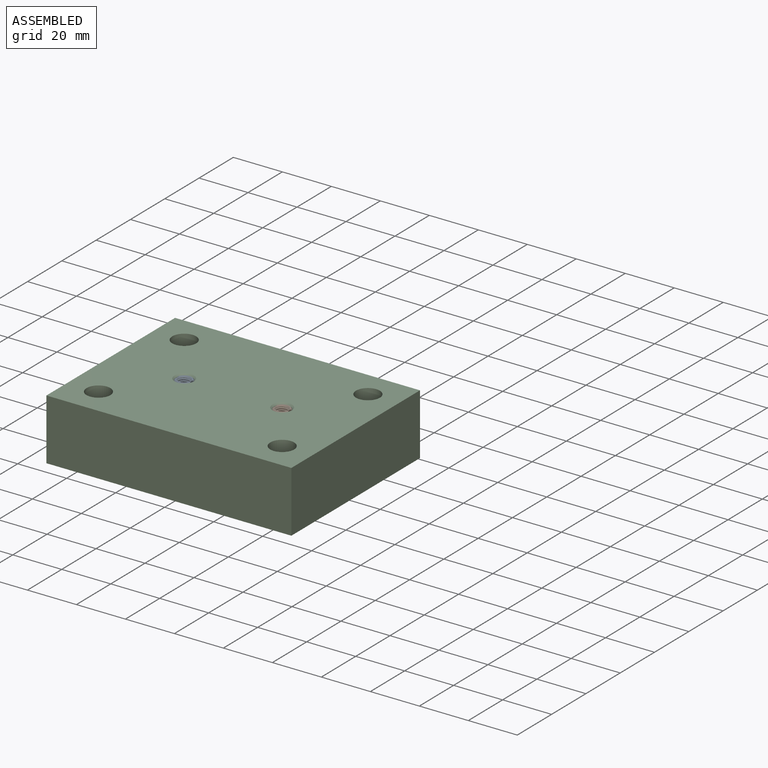
[diagram: assembled view]
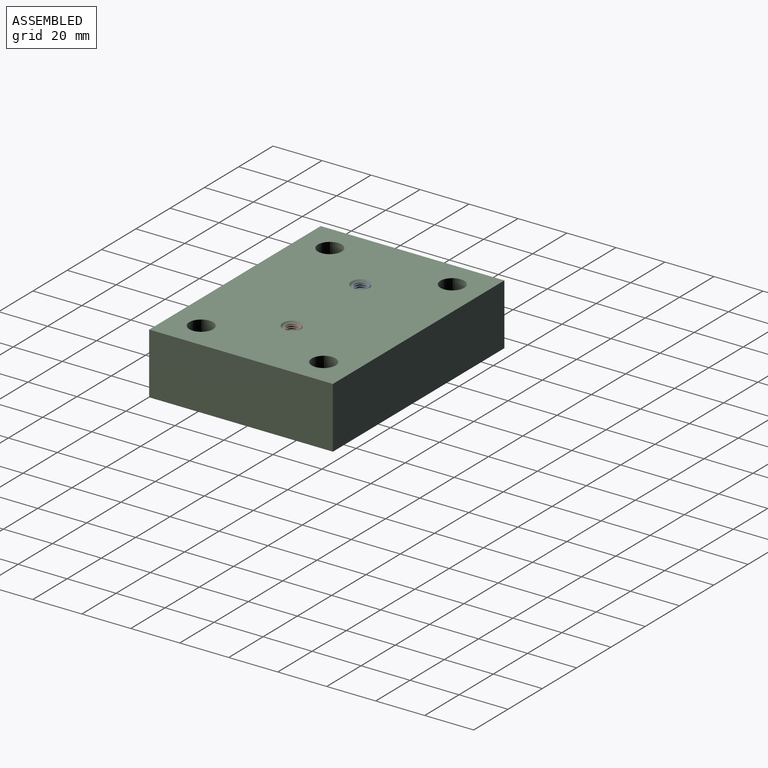
[diagram: assembled view, second angle]
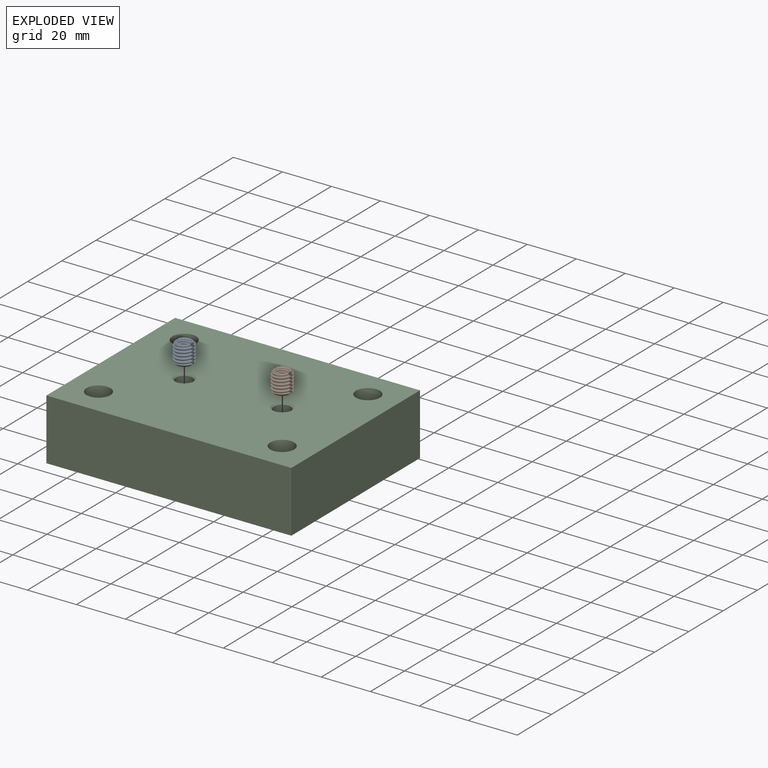
[diagram: exploded view]
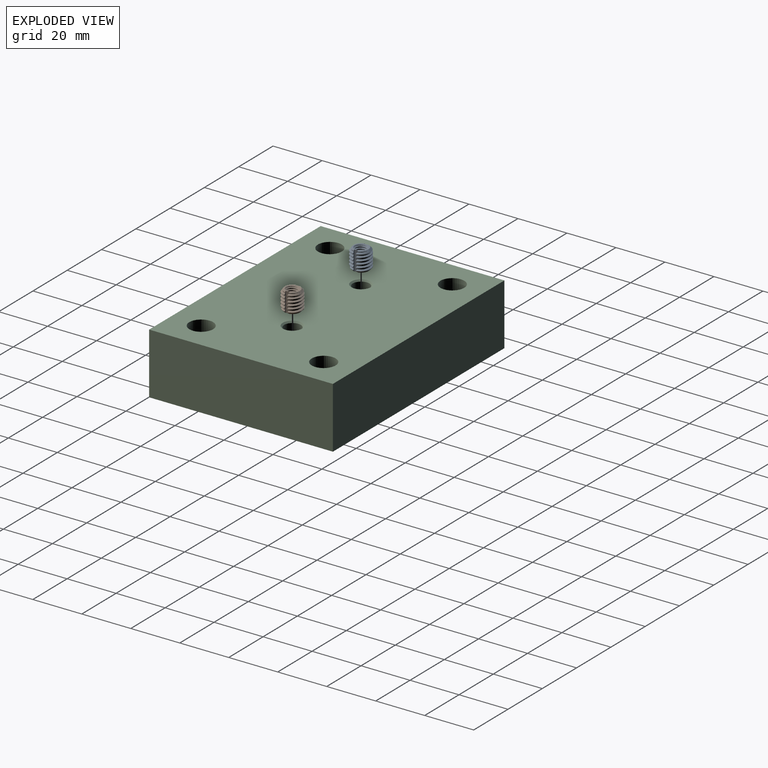
[diagram: exploded view, second angle]
ASSEMBLY  parts=3 mates=2
PART A: 73 faces, bbox 8x8.6x8.1 mm
  f0: cone r=2.59mm half-angle=45deg, axis (0,-1,0), area 7mm2, adj f3,f25,f70,f71,f72
  f1: cone r=2.59mm half-angle=45deg, axis (0,1,0), area 6.2mm2, adj f2,f3,f11,f70,f71,f72
  f2: cone r=2.59mm half-angle=45deg, axis (0,1,0), area 0.8mm2, adj f1,f71,f72
  f3: cylinder r=2.5mm len=7.83mm, axis (0,1,0), area 15.4mm2, adj f0,f1,f70,f71
  f4: cylinder r=4mm len=6.8mm, axis (0,1,0), area 1.1mm2, adj f18,f20,f47,f50
  f5: cone r=4mm half-angle=45deg, axis (0,1,0), area 9.1mm2, adj f17,f20,f23,f25,f27,f31,f32,f33
  f6: cylinder r=4mm len=7.94mm, axis (0,1,0), area 1.8mm2, adj f20,f23,f35,f39
  f7: cylinder r=4mm len=7.94mm, axis (0,1,0), area 1.8mm2, adj f20,f23,f38,f42
  f8: cylinder r=4mm len=7.94mm, axis (0,1,0), area 1.8mm2, adj f20,f23,f41,f45
  f9: cylinder r=4mm len=7.94mm, axis (0,1,0), area 1.8mm2, adj f20,f23,f44,f48
  f10: cone r=3.06mm half-angle=45deg, axis (0,-1,0), area 8.4mm2, adj f11,f21,f22,f28,f30,f68
  f11: plane 6.13x5.94mm, normal (0,1,0), area 7.8mm2, adj f1,f10,f19,f26,f27,f28,f29,f30
  f12: cylinder r=4mm len=7.94mm, axis (0,1,0), area 1.8mm2, adj f21,f22,f62,f66
  f13: cylinder r=4mm len=7.94mm, axis (0,1,0), area 1.8mm2, adj f21,f22,f59,f63
  f14: cylinder r=4mm len=7.94mm, axis (0,1,0), area 1.8mm2, adj f21,f22,f56,f60
  f15: cylinder r=4mm len=7.94mm, axis (0,1,0), area 1.8mm2, adj f21,f22,f53,f57
  f16: cone r=4mm half-angle=45deg, axis (0,1,0), area 5.9mm2, adj f21,f22,f25,f28,f30,f54
  f17: cylinder r=4mm len=2.74mm, axis (0,1,0), area 0.3mm2, adj f5,f23,f33,f36
  f18: cone r=3.06mm half-angle=45deg, axis (0,-1,0), area 2.3mm2, adj f4,f23,f47,f50
  f19: cone r=3.06mm half-angle=45deg, axis (0,-1,0), area 3.6mm2, adj f11,f20,f23,f27,f31,f49,f51
  f20: plane 7.86x0.95mm, normal (0.26,0,-0.97), area 3.7mm2, adj f4,f5,f6,f7,f8,f9,f19,f27
  f21: plane 7.86x0.95mm, normal (0.26,0,0.97), area 3.7mm2, adj f10,f12,f13,f14,f15,f16,f24,f28
  f22: plane 7.89x0.97mm, normal (-0.26,0,0.97), area 3.8mm2, adj f10,f12,f13,f14,f15,f16,f24,f30
  f23: plane 7.86x0.94mm, normal (-0.26,0,-0.97), area 3.8mm2, adj f5,f6,f7,f8,f9,f17,f18,f19
  f24: cylinder r=4mm len=7.94mm, axis (0,1,0), area 1.8mm2, adj f21,f22,f65,f67
  f25: plane 6.13x5.94mm, normal (0,-1,0), area 7.8mm2, adj f0,f5,f16,f26,f27,f28,f29,f30
  f26: plane 8x1.5mm, normal (-1,0,0), area 12mm2, adj f11,f25,f27,f28
  f27: plane 8x0.25mm, normal (0,0,-1), area 2mm2, adj f5,f11,f19,f20,f25,f26
  f28: plane 8x0.25mm, normal (0,0,1), area 2mm2, adj f10,f11,f16,f21,f25,f26
  f29: plane 8x1.5mm, normal (1,0,0), area 12mm2, adj f11,f25,f30,f31
  f30: plane 8x0.25mm, normal (0,0,1), area 2mm2, adj f10,f11,f16,f22,f25,f29
  f31: plane 8x0.25mm, normal (0,0,-1), area 2mm2, adj f5,f11,f19,f23,f25,f29
  f32: cylinder r=3.32mm len=3.33mm, axis (0,1,0), area 0.6mm2, adj f5,f23,f33
  f33: bspline ~4.07x3.58mm, area 2mm2, adj f5,f17,f23,f32
  f34: cylinder r=3.32mm len=6.5mm, axis (0,1,0), area 2.8mm2, adj f20,f23,f35,f36
  f35: bspline ~7.94x3.58mm, area 8mm2, adj f6,f20,f23,f34
  f36: bspline ~7.92x3.58mm, area 6.8mm2, adj f5,f17,f20,f23,f34
  f37: cylinder r=3.32mm len=6.5mm, axis (0,1,0), area 2.8mm2, adj f20,f23,f38,f39
  f38: bspline ~7.94x3.58mm, area 8mm2, adj f7,f20,f23,f37
  f39: bspline ~7.94x3.58mm, area 8mm2, adj f6,f20,f23,f37
  f40: cylinder r=3.32mm len=6.5mm, axis (0,1,0), area 2.8mm2, adj f20,f23,f41,f42
  f41: bspline ~7.94x3.58mm, area 8mm2, adj f8,f20,f23,f40
  f42: bspline ~7.94x3.58mm, area 8mm2, adj f7,f20,f23,f40
  f43: cylinder r=3.32mm len=6.5mm, axis (0,1,0), area 2.8mm2, adj f20,f23,f44,f45
  f44: bspline ~7.94x3.58mm, area 8mm2, adj f9,f20,f23,f43
  f45: bspline ~7.94x3.58mm, area 8mm2, adj f8,f20,f23,f43
  f46: cylinder r=3.32mm len=6.5mm, axis (0,1,0), area 2.8mm2, adj f20,f23,f47,f48
  f47: bspline ~7.93x3.58mm, area 7.9mm2, adj f4,f18,f20,f23,f46
  f48: bspline ~7.94x3.58mm, area 8mm2, adj f9,f20,f23,f46
  f49: cylinder r=3.32mm len=6.5mm, axis (0,1,0), area 2.1mm2, adj f19,f20,f23,f50,f51
  f50: bspline ~7.88x3.58mm, area 6mm2, adj f4,f18,f20,f23,f49
  f51: bspline ~3.47x3.31mm, area 0.4mm2, adj f19,f20,f49
  f52: cylinder r=3.32mm len=6.5mm, axis (0,1,0), area 2.8mm2, adj f21,f22,f53,f54
  f53: bspline ~7.94x3.58mm, area 8mm2, adj f15,f21,f22,f52
  f54: bspline ~7.28x3.17mm, area 2.2mm2, adj f16,f21,f22,f52
  f55: cylinder r=3.32mm len=6.5mm, axis (0,1,0), area 2.8mm2, adj f21,f22,f56,f57
  f56: bspline ~7.94x3.58mm, area 8mm2, adj f14,f21,f22,f55
  f57: bspline ~7.94x3.58mm, area 8mm2, adj f15,f21,f22,f55
  f58: cylinder r=3.32mm len=6.5mm, axis (0,1,0), area 2.8mm2, adj f21,f22,f59,f60
  f59: bspline ~7.94x3.58mm, area 8mm2, adj f13,f21,f22,f58
  f60: bspline ~7.94x3.58mm, area 8mm2, adj f14,f21,f22,f58
  f61: cylinder r=3.32mm len=6.5mm, axis (0,1,0), area 2.8mm2, adj f21,f22,f62,f63
  f62: bspline ~7.94x3.58mm, area 8mm2, adj f12,f21,f22,f61
  f63: bspline ~7.94x3.58mm, area 8mm2, adj f13,f21,f22,f61
  f64: cylinder r=3.32mm len=6.5mm, axis (0,1,0), area 2.8mm2, adj f21,f22,f65,f66
  f65: bspline ~7.94x3.58mm, area 8mm2, adj f21,f22,f24,f64
  f66: bspline ~7.94x3.58mm, area 8mm2, adj f12,f21,f22,f64
  f67: bspline ~7.94x3.58mm, area 8mm2, adj f21,f22,f24,f69
  f68: bspline ~7.67x3.42mm, area 4.3mm2, adj f10,f21,f22,f69
  f69: cylinder r=3.32mm len=6.5mm, axis (0,1,0), area 2.8mm2, adj f21,f22,f67,f68
  f70: bspline ~8.28x5.09mm, area 66.5mm2, adj f0,f1,f3,f72
  f71: bspline ~8.28x5.09mm, area 66.4mm2, adj f0,f1,f2,f3,f72
  f72: cylinder r=2.07mm len=6.96mm, axis (0,1,0), area 22.5mm2, adj f0,f1,f2,f70,f71
PART B: same geometry as A
PART C: 24 faces, bbox 100x75x25 mm
  f0: plane 75x25mm, normal (1,0,0), area 1875mm2, adj f1,f3,f4,f5
  f1: plane 100x25mm, normal (0,1,0), area 2500mm2, adj f0,f2,f4,f5
  f2: plane 75x25mm, normal (-1,0,0), area 1875mm2, adj f1,f3,f4,f5
  f3: plane 100x25mm, normal (0,-1,0), area 2500mm2, adj f0,f2,f4,f5
  f4: plane 100x75mm, normal (0,0,1), area 7100.8mm2, adj f0,f1,f2,f3,f8,f11,f14,f17
  f5: plane 100x75mm, normal (0,0,-1), area 7405mm2, adj f0,f1,f2,f3,f6,f9,f12,f15
  f6: cylinder r=2.75mm len=20mm, axis (0,0,1), area 345.6mm2, adj f5,f7
  f7: plane 9.75x9.75mm, normal (0,0,1), area 50.9mm2, adj f6,f8
  f8: cylinder r=4.88mm len=9.75mm, axis (0,0,1), area 153.2mm2, adj f4,f7
  f9: cylinder r=2.75mm len=20mm, axis (0,0,1), area 345.6mm2, adj f5,f10
  f10: plane 9.75x9.75mm, normal (0,0,1), area 50.9mm2, adj f9,f11
  f11: cylinder r=4.88mm len=9.75mm, axis (0,0,1), area 153.2mm2, adj f4,f10
  f12: cylinder r=2.75mm len=20mm, axis (0,0,1), area 345.6mm2, adj f5,f13
  f13: plane 9.75x9.75mm, normal (0,0,1), area 50.9mm2, adj f12,f14
  f14: cylinder r=4.88mm len=9.75mm, axis (0,0,1), area 153.2mm2, adj f4,f13
  f15: cylinder r=2.75mm len=20mm, axis (0,0,1), area 345.6mm2, adj f5,f16
  f16: plane 9.75x9.75mm, normal (0,0,1), area 50.9mm2, adj f15,f17
  f17: cylinder r=4.88mm len=9.75mm, axis (0,0,1), area 153.2mm2, adj f4,f16
  f18: cylinder r=3.4mm len=15.15mm, axis (0,0,1), area 323.6mm2, adj f19,f20
  f19: cone r=3.4mm half-angle=45deg, axis (0,0,1), area 19.7mm2, adj f4,f18
  f20: cone r=0mm half-angle=59deg, axis (0,0,1), area 42.4mm2, adj f18
  f21: cylinder r=3.4mm len=15.15mm, axis (0,0,1), area 323.6mm2, adj f22,f23
  f22: cone r=3.4mm half-angle=45deg, axis (0,0,1), area 19.7mm2, adj f4,f21
  f23: cone r=0mm half-angle=59deg, axis (0,0,1), area 42.4mm2, adj f21
PLACE A rot(axis=(-1,0,0),90deg) t=(-20,0,16.7)mm
PLACE B rot(axis=(-1,0,0),90deg) t=(20,0,16.7)mm
PLACE C at identity fixed
MATE fastened C.f21 <-> A.f0  axis (0,0,1) through (-20,0,24.7)mm
MATE fastened B.f0 <-> C.f18  axis (0,0,1) through (20,0,24.7)mm
